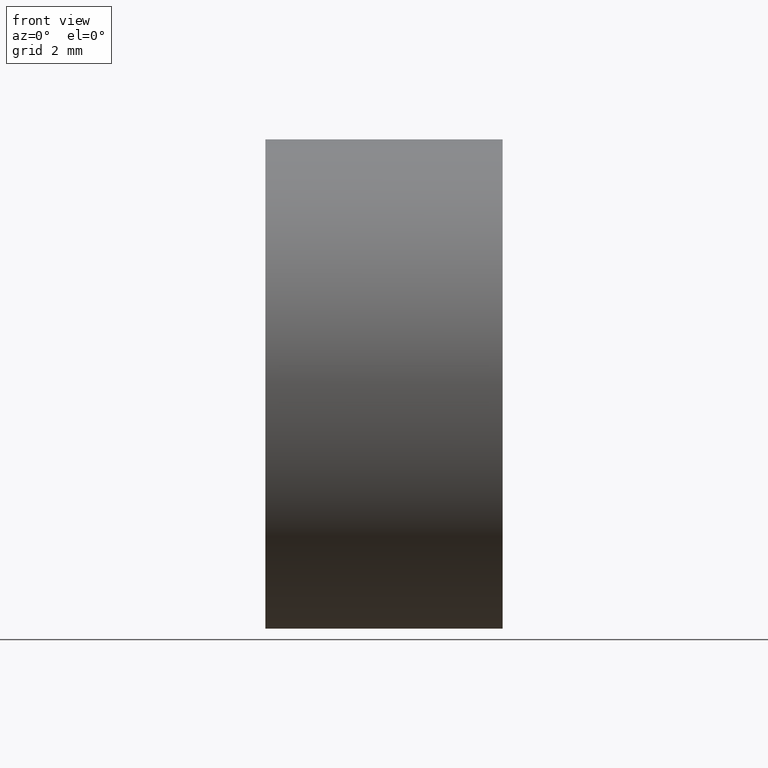
[diagram: clean part render]
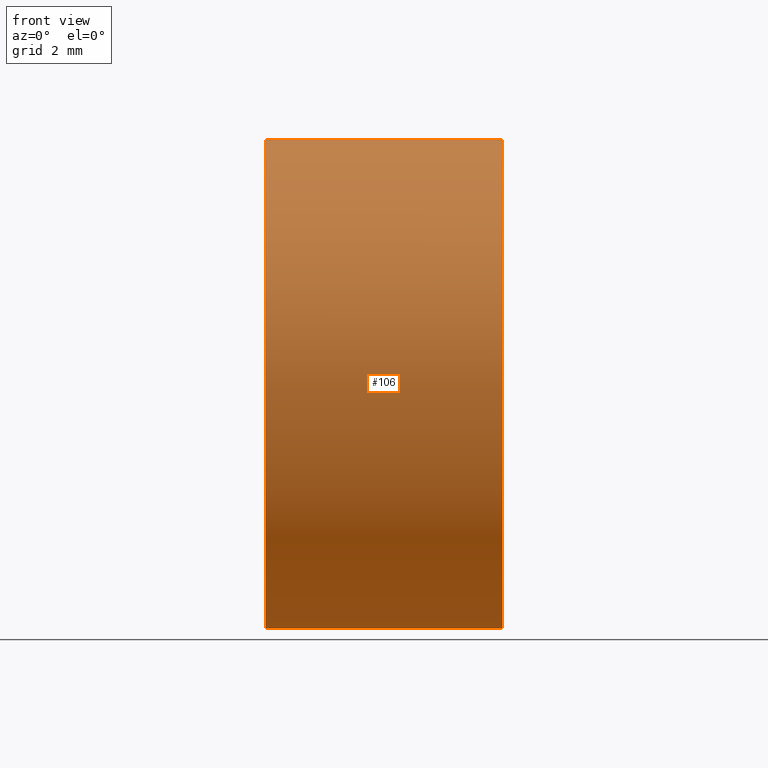
[diagram: same view with one face highlighted and labeled with its STEP entity id]
A machine part, front view. The second image highlights one B-rep face of the part: STEP entity #106.
In plain terms, the highlighted cylindrical surface (partial cylindrical patch) has radius 5 mm, axis along (-1, -0, -0).
Its self-contained STEP definition (entity closure, byte-faithful):
#7 = CIRCLE ( 'NONE', #78, 4.999999999999999100 ) ;
#14 = EDGE_CURVE ( 'NONE', #136, #126, #7, .T. ) ;
#17 = DIRECTION ( 'NONE',  ( -1.000000000000000000, -0.0000000000000000000, -0.0000000000000000000 ) ) ;
#19 = CARTESIAN_POINT ( 'NONE',  ( 21.59847265101309000, 13.04452057459747900, 4.999999999999999100 ) ) ;
#23 = EDGE_LOOP ( 'NONE', ( #191, #62, #157, #150, #82, #183 ) ) ;
#28 = CARTESIAN_POINT ( 'NONE',  ( 26.45004007673697900, 13.04452057459747900, -4.999999999999999100 ) ) ;
#36 = AXIS2_PLACEMENT_3D ( 'NONE', #142, #128, #160 ) ;
#45 = CARTESIAN_POINT ( 'NONE',  ( 26.45004007673697900, 8.044520574597477500, -6.123233995736767300E-016 ) ) ;
#47 = DIRECTION ( 'NONE',  ( -1.000000000000000000, -0.0000000000000000000, -0.0000000000000000000 ) ) ;
#49 = FACE_OUTER_BOUND ( 'NONE', #23, .T. ) ;
#50 = DIRECTION ( 'NONE',  ( 0.0000000000000000000, 0.0000000000000000000, 1.000000000000000000 ) ) ;
#59 = LINE ( 'NONE', #125, #201 ) ;
#62 = ORIENTED_EDGE ( 'NONE', *, *, #14, .T. ) ;
#64 = VERTEX_POINT ( 'NONE', #218 ) ;
#68 = AXIS2_PLACEMENT_3D ( 'NONE', #155, #88, #171 ) ;
#71 = DIRECTION ( 'NONE',  ( -1.000000000000000000, -0.0000000000000000000, -0.0000000000000000000 ) ) ;
#78 = AXIS2_PLACEMENT_3D ( 'NONE', #174, #47, #122 ) ;
#82 = ORIENTED_EDGE ( 'NONE', *, *, #190, .F. ) ;
#88 = DIRECTION ( 'NONE',  ( -1.000000000000000000, -0.0000000000000000000, -0.0000000000000000000 ) ) ;
#89 = CIRCLE ( 'NONE', #146, 4.999999999999999100 ) ;
#90 = DIRECTION ( 'NONE',  ( -1.000000000000000000, -0.0000000000000000000, -0.0000000000000000000 ) ) ;
#91 = VERTEX_POINT ( 'NONE', #137 ) ;
#98 = VECTOR ( 'NONE', #17, 1000.000000000000000 ) ;
#99 = CARTESIAN_POINT ( 'NONE',  ( 21.59847265101309000, 8.044520574597479300, -6.123233995736765300E-016 ) ) ;
#106 = ADVANCED_FACE ( 'NONE', ( #49 ), #224, .T. ) ;
#112 = VERTEX_POINT ( 'NONE', #99 ) ;
#122 = DIRECTION ( 'NONE',  ( 0.0000000000000000000, 0.0000000000000000000, 1.000000000000000000 ) ) ;
#125 = CARTESIAN_POINT ( 'NONE',  ( 21.22493055706841100, 13.04452057459747900, 4.999999999999999100 ) ) ;
#126 = VERTEX_POINT ( 'NONE', #45 ) ;
#128 = DIRECTION ( 'NONE',  ( -1.000000000000000000, -0.0000000000000000000, -0.0000000000000000000 ) ) ;
#136 = VERTEX_POINT ( 'NONE', #28 ) ;
#137 = CARTESIAN_POINT ( 'NONE',  ( 21.59847265101309000, 13.04452057459747900, -4.999999999999999100 ) ) ;
#141 = CIRCLE ( 'NONE', #159, 4.999999999999999100 ) ;
#142 = CARTESIAN_POINT ( 'NONE',  ( 21.59847265101309000, 13.04452057459747900, 0.0000000000000000000 ) ) ;
#145 = EDGE_CURVE ( 'NONE', #126, #64, #89, .T. ) ;
#146 = AXIS2_PLACEMENT_3D ( 'NONE', #227, #90, #50 ) ;
#150 = ORIENTED_EDGE ( 'NONE', *, *, #185, .T. ) ;
#154 = CIRCLE ( 'NONE', #36, 4.999999999999999100 ) ;
#155 = CARTESIAN_POINT ( 'NONE',  ( 21.22493055706841100, 13.04452057459747900, 0.0000000000000000000 ) ) ;
#157 = ORIENTED_EDGE ( 'NONE', *, *, #145, .T. ) ;
#159 = AXIS2_PLACEMENT_3D ( 'NONE', #208, #178, #223 ) ;
#160 = DIRECTION ( 'NONE',  ( 0.0000000000000000000, 0.0000000000000000000, 1.000000000000000000 ) ) ;
#171 = DIRECTION ( 'NONE',  ( 0.0000000000000000000, 0.0000000000000000000, 1.000000000000000000 ) ) ;
#174 = CARTESIAN_POINT ( 'NONE',  ( 26.45004007673697900, 13.04452057459747900, 0.0000000000000000000 ) ) ;
#177 = EDGE_CURVE ( 'NONE', #136, #91, #186, .T. ) ;
#178 = DIRECTION ( 'NONE',  ( -1.000000000000000000, -0.0000000000000000000, -0.0000000000000000000 ) ) ;
#183 = ORIENTED_EDGE ( 'NONE', *, *, #231, .F. ) ;
#185 = EDGE_CURVE ( 'NONE', #64, #210, #59, .T. ) ;
#186 = LINE ( 'NONE', #212, #98 ) ;
#190 = EDGE_CURVE ( 'NONE', #112, #210, #154, .T. ) ;
#191 = ORIENTED_EDGE ( 'NONE', *, *, #177, .F. ) ;
#201 = VECTOR ( 'NONE', #71, 1000.000000000000000 ) ;
#208 = CARTESIAN_POINT ( 'NONE',  ( 21.59847265101309000, 13.04452057459747900, 0.0000000000000000000 ) ) ;
#210 = VERTEX_POINT ( 'NONE', #19 ) ;
#212 = CARTESIAN_POINT ( 'NONE',  ( 21.22493055706841100, 13.04452057459747900, -4.999999999999999100 ) ) ;
#218 = CARTESIAN_POINT ( 'NONE',  ( 26.45004007673697900, 13.04452057459747900, 4.999999999999999100 ) ) ;
#223 = DIRECTION ( 'NONE',  ( 0.0000000000000000000, 0.0000000000000000000, 1.000000000000000000 ) ) ;
#224 = CYLINDRICAL_SURFACE ( 'NONE', #68, 4.999999999999999100 ) ;
#227 = CARTESIAN_POINT ( 'NONE',  ( 26.45004007673697900, 13.04452057459747900, 0.0000000000000000000 ) ) ;
#231 = EDGE_CURVE ( 'NONE', #91, #112, #141, .T. ) ;